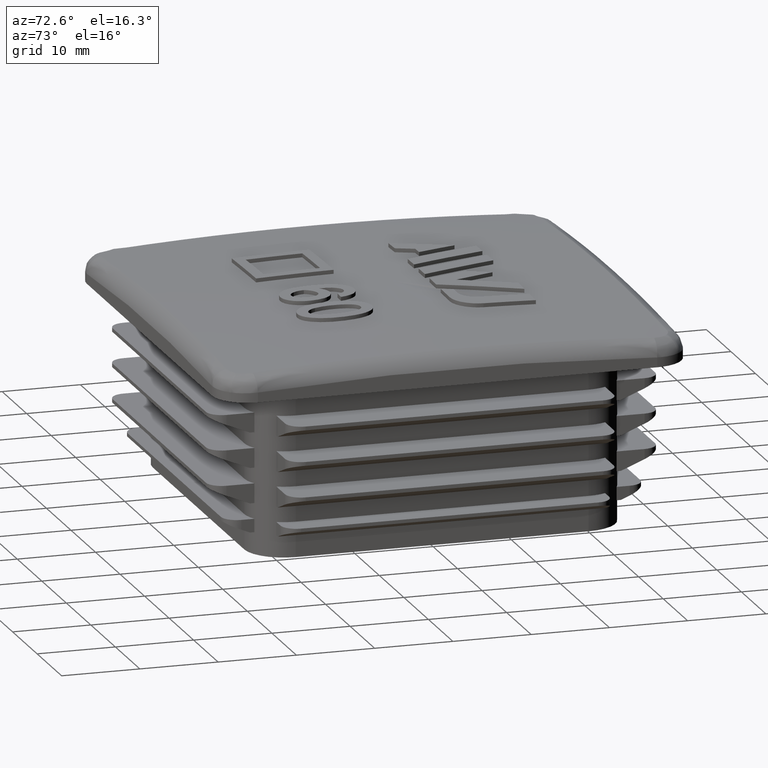
[diagram: clean part render]
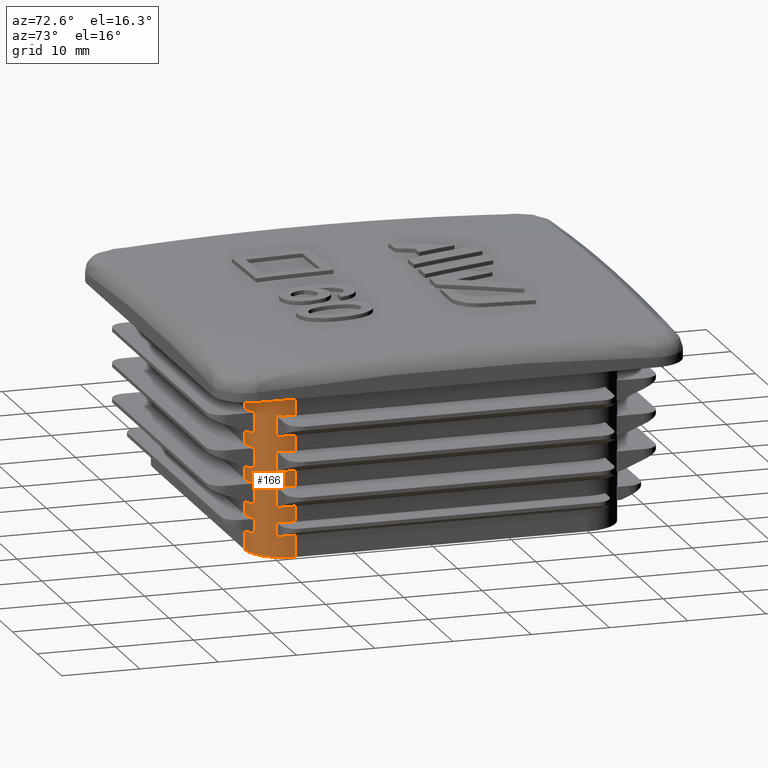
[diagram: same view with one face highlighted and labeled with its STEP entity id]
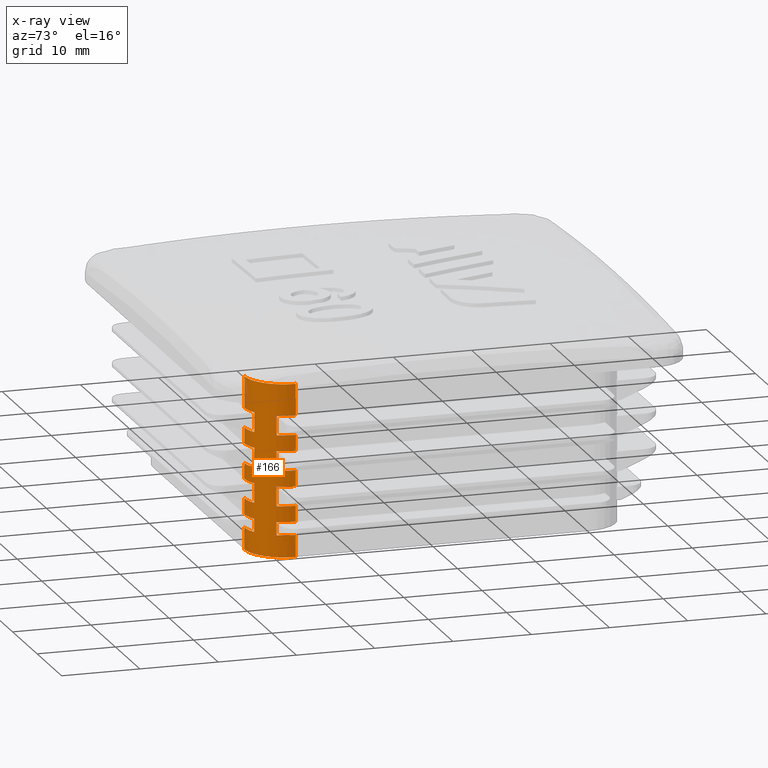
[diagram: x-ray of the same camera — body ghosted, the highlighted face saturated]
A machine part, auxiliary view. The second image highlights one B-rep face of the part: STEP entity #166.
The next image is the same camera in x-ray: the body ghosted, the highlighted face saturated — about 1% of this face is hidden behind the body in this view.
In plain terms, the highlighted cylindrical surface (partial cylindrical patch) has radius 5 mm, axis along (0, 0, -1).
Its self-contained STEP definition (entity closure, byte-faithful):
#166 = ADVANCED_FACE( '', ( #557 ), #558, .T. );
#557 = FACE_OUTER_BOUND( '', #3223, .T. );
#558 = CYLINDRICAL_SURFACE( '', #3224, 5.00000000000000 );
#3223 = EDGE_LOOP( '', ( #4375, #4376, #4377, #4378, #4379, #4380, #4381, #4382, #4383, #4384, #4385, #4386, #4387, #4388, #4389, #4390, #4391, #4392, #4393, #4394, #4395, #4396, #4397, #4398, #4399, #4400, #4401, #4402, #4403, #4404, #4405, #4406, #4407, #4408, #4409, #4410 ) );
#3224 = AXIS2_PLACEMENT_3D( '', #4411, #4412, #4413 );
#4375 = ORIENTED_EDGE( '', *, *, #6253, .F. );
#4376 = ORIENTED_EDGE( '', *, *, #6254, .T. );
#4377 = ORIENTED_EDGE( '', *, *, #6255, .T. );
#4378 = ORIENTED_EDGE( '', *, *, #6256, .T. );
#4379 = ORIENTED_EDGE( '', *, *, #6257, .F. );
#4380 = ORIENTED_EDGE( '', *, *, #6258, .T. );
#4381 = ORIENTED_EDGE( '', *, *, #6259, .T. );
#4382 = ORIENTED_EDGE( '', *, *, #6260, .T. );
#4383 = ORIENTED_EDGE( '', *, *, #6261, .F. );
#4384 = ORIENTED_EDGE( '', *, *, #6262, .T. );
#4385 = ORIENTED_EDGE( '', *, *, #6263, .T. );
#4386 = ORIENTED_EDGE( '', *, *, #6264, .T. );
#4387 = ORIENTED_EDGE( '', *, *, #6265, .F. );
#4388 = ORIENTED_EDGE( '', *, *, #6266, .T. );
#4389 = ORIENTED_EDGE( '', *, *, #6267, .T. );
#4390 = ORIENTED_EDGE( '', *, *, #6044, .F. );
#4391 = ORIENTED_EDGE( '', *, *, #6268, .F. );
#4392 = ORIENTED_EDGE( '', *, *, #6269, .T. );
#4393 = ORIENTED_EDGE( '', *, *, #6270, .T. );
#4394 = ORIENTED_EDGE( '', *, *, #6271, .T. );
#4395 = ORIENTED_EDGE( '', *, *, #6272, .F. );
#4396 = ORIENTED_EDGE( '', *, *, #6273, .T. );
#4397 = ORIENTED_EDGE( '', *, *, #6274, .T. );
#4398 = ORIENTED_EDGE( '', *, *, #6275, .T. );
#4399 = ORIENTED_EDGE( '', *, *, #6276, .F. );
#4400 = ORIENTED_EDGE( '', *, *, #6277, .T. );
#4401 = ORIENTED_EDGE( '', *, *, #6278, .T. );
#4402 = ORIENTED_EDGE( '', *, *, #6279, .T. );
#4403 = ORIENTED_EDGE( '', *, *, #6280, .F. );
#4404 = ORIENTED_EDGE( '', *, *, #6281, .T. );
#4405 = ORIENTED_EDGE( '', *, *, #6282, .T. );
#4406 = ORIENTED_EDGE( '', *, *, #6283, .T. );
#4407 = ORIENTED_EDGE( '', *, *, #6284, .F. );
#4408 = ORIENTED_EDGE( '', *, *, #6125, .T. );
#4409 = ORIENTED_EDGE( '', *, *, #6285, .T. );
#4410 = ORIENTED_EDGE( '', *, *, #6286, .T. );
#4411 = CARTESIAN_POINT( '', ( 18.7000000000000, -18.7000000000000, 3.46944695195361E-015 ) );
#4412 = DIRECTION( '', ( 0.000000000000000, 0.000000000000000, -1.00000000000000 ) );
#4413 = DIRECTION( '', ( 0.000000000000000, -1.00000000000000, 0.000000000000000 ) );
#6044 = EDGE_CURVE( '', #6874, #6876, #6877, .T. );
#6125 = EDGE_CURVE( '', #7020, #7018, #7021, .T. );
#6253 = EDGE_CURVE( '', #7220, #7221, #7222, .F. );
#6254 = EDGE_CURVE( '', #7220, #7223, #7224, .F. );
#6255 = EDGE_CURVE( '', #7223, #7225, #7226, .T. );
#6256 = EDGE_CURVE( '', #7225, #7227, #7228, .F. );
#6257 = EDGE_CURVE( '', #7229, #7227, #7230, .F. );
#6258 = EDGE_CURVE( '', #7229, #7231, #7232, .F. );
#6259 = EDGE_CURVE( '', #7231, #7233, #7234, .T. );
#6260 = EDGE_CURVE( '', #7233, #7235, #7236, .F. );
#6261 = EDGE_CURVE( '', #7237, #7235, #7238, .F. );
#6262 = EDGE_CURVE( '', #7237, #7239, #7240, .F. );
#6263 = EDGE_CURVE( '', #7239, #7241, #7242, .T. );
#6264 = EDGE_CURVE( '', #7241, #7243, #7244, .F. );
#6265 = EDGE_CURVE( '', #7245, #7243, #7246, .F. );
#6266 = EDGE_CURVE( '', #7245, #7247, #7248, .F. );
#6267 = EDGE_CURVE( '', #7247, #6876, #7249, .T. );
#6268 = EDGE_CURVE( '', #7250, #6874, #7251, .T. );
#6269 = EDGE_CURVE( '', #7250, #7252, #7253, .F. );
#6270 = EDGE_CURVE( '', #7252, #7254, #7255, .F. );
#6271 = EDGE_CURVE( '', #7254, #7256, #7257, .F. );
#6272 = EDGE_CURVE( '', #7258, #7256, #7259, .T. );
#6273 = EDGE_CURVE( '', #7258, #7260, #7261, .F. );
#6274 = EDGE_CURVE( '', #7260, #7262, #7263, .F. );
#6275 = EDGE_CURVE( '', #7262, #7264, #7265, .F. );
#6276 = EDGE_CURVE( '', #7266, #7264, #7267, .T. );
#6277 = EDGE_CURVE( '', #7266, #7268, #7269, .F. );
#6278 = EDGE_CURVE( '', #7268, #7270, #7271, .F. );
#6279 = EDGE_CURVE( '', #7270, #7272, #7273, .F. );
#6280 = EDGE_CURVE( '', #7274, #7272, #7275, .T. );
#6281 = EDGE_CURVE( '', #7274, #7276, #7277, .F. );
#6282 = EDGE_CURVE( '', #7276, #7278, #7279, .F. );
#6283 = EDGE_CURVE( '', #7278, #7280, #7281, .F. );
#6284 = EDGE_CURVE( '', #7020, #7280, #7282, .T. );
#6285 = EDGE_CURVE( '', #7018, #7283, #7284, .T. );
#6286 = EDGE_CURVE( '', #7283, #7221, #7285, .F. );
#6874 = VERTEX_POINT( '', #9125 );
#6876 = VERTEX_POINT( '', #9128 );
#6877 = CIRCLE( '', #9129, 5.00000000000000 );
#7018 = VERTEX_POINT( '', #9922 );
#7020 = VERTEX_POINT( '', #9925 );
#7021 = CIRCLE( '', #9926, 5.00000000000000 );
#7220 = VERTEX_POINT( '', #10706 );
#7221 = VERTEX_POINT( '', #10707 );
#7222 = LINE( '', #10708, #10709 );
#7223 = VERTEX_POINT( '', #10710 );
#7224 = CIRCLE( '', #10711, 5.00000000000000 );
#7225 = VERTEX_POINT( '', #10712 );
#7226 = LINE( '', #10713, #10714 );
#7227 = VERTEX_POINT( '', #10715 );
#7228 = CIRCLE( '', #10716, 5.00000000000000 );
#7229 = VERTEX_POINT( '', #10717 );
#7230 = LINE( '', #10718, #10719 );
#7231 = VERTEX_POINT( '', #10720 );
#7232 = CIRCLE( '', #10721, 5.00000000000000 );
#7233 = VERTEX_POINT( '', #10722 );
#7234 = LINE( '', #10723, #10724 );
#7235 = VERTEX_POINT( '', #10725 );
#7236 = CIRCLE( '', #10726, 5.00000000000000 );
#7237 = VERTEX_POINT( '', #10727 );
#7238 = LINE( '', #10728, #10729 );
#7239 = VERTEX_POINT( '', #10730 );
#7240 = CIRCLE( '', #10731, 5.00000000000000 );
#7241 = VERTEX_POINT( '', #10732 );
#7242 = LINE( '', #10733, #10734 );
#7243 = VERTEX_POINT( '', #10735 );
#7244 = CIRCLE( '', #10736, 5.00000000000000 );
#7245 = VERTEX_POINT( '', #10737 );
#7246 = LINE( '', #10738, #10739 );
#7247 = VERTEX_POINT( '', #10740 );
#7248 = CIRCLE( '', #10741, 5.00000000000000 );
#7249 = LINE( '', #10742, #10743 );
#7250 = VERTEX_POINT( '', #10744 );
#7251 = LINE( '', #10745, #10746 );
#7252 = VERTEX_POINT( '', #10747 );
#7253 = CIRCLE( '', #10748, 5.00000000000000 );
#7254 = VERTEX_POINT( '', #10749 );
#7255 = LINE( '', #10750, #10751 );
#7256 = VERTEX_POINT( '', #10752 );
#7257 = CIRCLE( '', #10753, 5.00000000000000 );
#7258 = VERTEX_POINT( '', #10754 );
#7259 = LINE( '', #10755, #10756 );
#7260 = VERTEX_POINT( '', #10757 );
#7261 = CIRCLE( '', #10758, 5.00000000000000 );
#7262 = VERTEX_POINT( '', #10759 );
#7263 = LINE( '', #10760, #10761 );
#7264 = VERTEX_POINT( '', #10762 );
#7265 = CIRCLE( '', #10763, 5.00000000000000 );
#7266 = VERTEX_POINT( '', #10764 );
#7267 = LINE( '', #10765, #10766 );
#7268 = VERTEX_POINT( '', #10767 );
#7269 = CIRCLE( '', #10768, 5.00000000000000 );
#7270 = VERTEX_POINT( '', #10769 );
#7271 = LINE( '', #10770, #10771 );
#7272 = VERTEX_POINT( '', #10772 );
#7273 = CIRCLE( '', #10773, 5.00000000000000 );
#7274 = VERTEX_POINT( '', #10774 );
#7275 = LINE( '', #10775, #10776 );
#7276 = VERTEX_POINT( '', #10777 );
#7277 = CIRCLE( '', #10778, 5.00000000000000 );
#7278 = VERTEX_POINT( '', #10779 );
#7279 = LINE( '', #10780, #10781 );
#7280 = VERTEX_POINT( '', #10782 );
#7281 = CIRCLE( '', #10783, 5.00000000000000 );
#7282 = LINE( '', #10784, #10785 );
#7283 = VERTEX_POINT( '', #10786 );
#7284 = LINE( '', #10787, #10788 );
#7285 = CIRCLE( '', #10789, 5.00000000000000 );
#9125 = CARTESIAN_POINT( '', ( 18.7000000000000, -23.7000000000000, 22.0000000000000 ) );
#9128 = CARTESIAN_POINT( '', ( 23.7000000000000, -18.7000000000000, 22.0000000000000 ) );
#9129 = AXIS2_PLACEMENT_3D( '', #11782, #11783, #11784 );
#9922 = CARTESIAN_POINT( '', ( 23.7000000000000, -18.7000000000000, 3.46944695195361E-015 ) );
#9925 = CARTESIAN_POINT( '', ( 18.7000000000000, -23.7000000000000, 3.46944695195361E-015 ) );
#9926 = AXIS2_PLACEMENT_3D( '', #11896, #11897, #11898 );
#10706 = CARTESIAN_POINT( '', ( 23.1395945760846, -21.0000000000000, 4.50000000000000 ) );
#10707 = CARTESIAN_POINT( '', ( 23.1395945760846, -21.0000000000000, 2.79999999999999 ) );
#10708 = CARTESIAN_POINT( '', ( 23.1395945760846, -21.0000000000000, 3.46944695195361E-015 ) );
#10709 = VECTOR( '', #12041, 1000.00000000000 );
#10710 = CARTESIAN_POINT( '', ( 23.7000000000000, -18.7000000000000, 4.50000000000000 ) );
#10711 = AXIS2_PLACEMENT_3D( '', #12042, #12043, #12044 );
#10712 = CARTESIAN_POINT( '', ( 23.7000000000001, -18.7000000000000, 6.50000000000002 ) );
#10713 = CARTESIAN_POINT( '', ( 23.7000000000000, -18.7000000000000, 3.46944695195361E-015 ) );
#10714 = VECTOR( '', #12045, 1000.00000000000 );
#10715 = CARTESIAN_POINT( '', ( 23.1395945760846, -21.0000000000000, 6.50000000000000 ) );
#10716 = AXIS2_PLACEMENT_3D( '', #12046, #12047, #12048 );
#10717 = CARTESIAN_POINT( '', ( 23.1395945760846, -21.0000000000000, 9.00000000000000 ) );
#10718 = CARTESIAN_POINT( '', ( 23.1395945760846, -21.0000000000000, 3.46944695195361E-015 ) );
#10719 = VECTOR( '', #12049, 1000.00000000000 );
#10720 = CARTESIAN_POINT( '', ( 23.7000000000000, -18.7000000000000, 9.00000000000000 ) );
#10721 = AXIS2_PLACEMENT_3D( '', #12050, #12051, #12052 );
#10722 = CARTESIAN_POINT( '', ( 23.7000000000000, -18.7000000000000, 11.0000000000000 ) );
#10723 = CARTESIAN_POINT( '', ( 23.7000000000000, -18.7000000000000, 3.46944695195361E-015 ) );
#10724 = VECTOR( '', #12053, 1000.00000000000 );
#10725 = CARTESIAN_POINT( '', ( 23.1395945760846, -21.0000000000000, 11.0000000000000 ) );
#10726 = AXIS2_PLACEMENT_3D( '', #12054, #12055, #12056 );
#10727 = CARTESIAN_POINT( '', ( 23.1395945760846, -21.0000000000000, 13.5000000000000 ) );
#10728 = CARTESIAN_POINT( '', ( 23.1395945760846, -21.0000000000000, 3.46944695195361E-015 ) );
#10729 = VECTOR( '', #12057, 1000.00000000000 );
#10730 = CARTESIAN_POINT( '', ( 23.7000000000000, -18.7000000000000, 13.5000000000000 ) );
#10731 = AXIS2_PLACEMENT_3D( '', #12058, #12059, #12060 );
#10732 = CARTESIAN_POINT( '', ( 23.7000000000001, -18.7000000000000, 15.5000000000000 ) );
#10733 = CARTESIAN_POINT( '', ( 23.7000000000000, -18.7000000000000, 3.46944695195361E-015 ) );
#10734 = VECTOR( '', #12061, 1000.00000000000 );
#10735 = CARTESIAN_POINT( '', ( 23.1395945760846, -21.0000000000000, 15.5000000000000 ) );
#10736 = AXIS2_PLACEMENT_3D( '', #12062, #12063, #12064 );
#10737 = CARTESIAN_POINT( '', ( 23.1395945760846, -21.0000000000000, 18.0000000000000 ) );
#10738 = CARTESIAN_POINT( '', ( 23.1395945760846, -21.0000000000000, 3.46944695195361E-015 ) );
#10739 = VECTOR( '', #12065, 1000.00000000000 );
#10740 = CARTESIAN_POINT( '', ( 23.7000000000000, -18.7000000000000, 18.0000000000000 ) );
#10741 = AXIS2_PLACEMENT_3D( '', #12066, #12067, #12068 );
#10742 = CARTESIAN_POINT( '', ( 23.7000000000000, -18.7000000000000, 3.46944695195361E-015 ) );
#10743 = VECTOR( '', #12069, 1000.00000000000 );
#10744 = CARTESIAN_POINT( '', ( 18.7000000000000, -23.7000000000000, 18.0000000000000 ) );
#10745 = CARTESIAN_POINT( '', ( 18.7000000000000, -23.7000000000000, 3.46944695195361E-015 ) );
#10746 = VECTOR( '', #12070, 1000.00000000000 );
#10747 = CARTESIAN_POINT( '', ( 21.0000000000000, -23.1395945760846, 18.0000000000000 ) );
#10748 = AXIS2_PLACEMENT_3D( '', #12071, #12072, #12073 );
#10749 = CARTESIAN_POINT( '', ( 21.0000000000000, -23.1395945760846, 15.5000000000000 ) );
#10750 = CARTESIAN_POINT( '', ( 21.0000000000000, -23.1395945760846, 3.46944695195361E-015 ) );
#10751 = VECTOR( '', #12074, 1000.00000000000 );
#10752 = CARTESIAN_POINT( '', ( 18.7000000000000, -23.7000000000000, 15.5000000000000 ) );
#10753 = AXIS2_PLACEMENT_3D( '', #12075, #12076, #12077 );
#10754 = CARTESIAN_POINT( '', ( 18.7000000000000, -23.7000000000000, 13.5000000000000 ) );
#10755 = CARTESIAN_POINT( '', ( 18.7000000000000, -23.7000000000000, 3.46944695195361E-015 ) );
#10756 = VECTOR( '', #12078, 1000.00000000000 );
#10757 = CARTESIAN_POINT( '', ( 21.0000000000000, -23.1395945760846, 13.5000000000000 ) );
#10758 = AXIS2_PLACEMENT_3D( '', #12079, #12080, #12081 );
#10759 = CARTESIAN_POINT( '', ( 21.0000000000000, -23.1395945760846, 11.0000000000000 ) );
#10760 = CARTESIAN_POINT( '', ( 21.0000000000000, -23.1395945760846, 3.46944695195361E-015 ) );
#10761 = VECTOR( '', #12082, 1000.00000000000 );
#10762 = CARTESIAN_POINT( '', ( 18.7000000000000, -23.7000000000000, 11.0000000000000 ) );
#10763 = AXIS2_PLACEMENT_3D( '', #12083, #12084, #12085 );
#10764 = CARTESIAN_POINT( '', ( 18.7000000000000, -23.7000000000000, 9.00000000000000 ) );
#10765 = CARTESIAN_POINT( '', ( 18.7000000000000, -23.7000000000000, 3.46944695195361E-015 ) );
#10766 = VECTOR( '', #12086, 1000.00000000000 );
#10767 = CARTESIAN_POINT( '', ( 21.0000000000000, -23.1395945760846, 9.00000000000000 ) );
#10768 = AXIS2_PLACEMENT_3D( '', #12087, #12088, #12089 );
#10769 = CARTESIAN_POINT( '', ( 21.0000000000000, -23.1395945760846, 6.50000000000002 ) );
#10770 = CARTESIAN_POINT( '', ( 21.0000000000000, -23.1395945760846, 3.46944695195361E-015 ) );
#10771 = VECTOR( '', #12090, 1000.00000000000 );
#10772 = CARTESIAN_POINT( '', ( 18.7000000000000, -23.7000000000000, 6.49999999999999 ) );
#10773 = AXIS2_PLACEMENT_3D( '', #12091, #12092, #12093 );
#10774 = CARTESIAN_POINT( '', ( 18.7000000000000, -23.7000000000000, 4.50000000000000 ) );
#10775 = CARTESIAN_POINT( '', ( 18.7000000000000, -23.7000000000000, 3.46944695195361E-015 ) );
#10776 = VECTOR( '', #12094, 1000.00000000000 );
#10777 = CARTESIAN_POINT( '', ( 21.0000000000000, -23.1395945760846, 4.50000000000000 ) );
#10778 = AXIS2_PLACEMENT_3D( '', #12095, #12096, #12097 );
#10779 = CARTESIAN_POINT( '', ( 21.0000000000000, -23.1395945760846, 2.79999999999999 ) );
#10780 = CARTESIAN_POINT( '', ( 21.0000000000000, -23.1395945760846, 3.46944695195361E-015 ) );
#10781 = VECTOR( '', #12098, 1000.00000000000 );
#10782 = CARTESIAN_POINT( '', ( 18.7000000000000, -23.7000000000000, 2.79999999999999 ) );
#10783 = AXIS2_PLACEMENT_3D( '', #12099, #12100, #12101 );
#10784 = CARTESIAN_POINT( '', ( 18.7000000000000, -23.7000000000000, 3.46944695195361E-015 ) );
#10785 = VECTOR( '', #12102, 1000.00000000000 );
#10786 = CARTESIAN_POINT( '', ( 23.7000000000000, -18.7000000000000, 2.79999999999999 ) );
#10787 = CARTESIAN_POINT( '', ( 23.7000000000000, -18.7000000000000, 3.46944695195361E-015 ) );
#10788 = VECTOR( '', #12103, 1000.00000000000 );
#10789 = AXIS2_PLACEMENT_3D( '', #12104, #12105, #12106 );
#11782 = CARTESIAN_POINT( '', ( 18.7000000000000, -18.7000000000000, 22.0000000000000 ) );
#11783 = DIRECTION( '', ( 0.000000000000000, 0.000000000000000, 1.00000000000000 ) );
#11784 = DIRECTION( '', ( 0.000000000000000, -1.00000000000000, 0.000000000000000 ) );
#11896 = CARTESIAN_POINT( '', ( 18.7000000000000, -18.7000000000000, 3.46944695195361E-015 ) );
#11897 = DIRECTION( '', ( 0.000000000000000, 0.000000000000000, 1.00000000000000 ) );
#11898 = DIRECTION( '', ( 0.000000000000000, -1.00000000000000, 0.000000000000000 ) );
#12041 = DIRECTION( '', ( 0.000000000000000, 0.000000000000000, 1.00000000000000 ) );
#12042 = CARTESIAN_POINT( '', ( 18.7000000000000, -18.7000000000000, 4.50000000000000 ) );
#12043 = DIRECTION( '', ( 0.000000000000000, -6.12303176911189E-017, -1.00000000000000 ) );
#12044 = DIRECTION( '', ( 0.000000000000000, 1.00000000000000, -6.12303176911189E-017 ) );
#12045 = DIRECTION( '', ( 0.000000000000000, 0.000000000000000, 1.00000000000000 ) );
#12046 = CARTESIAN_POINT( '', ( 18.7000000000000, -18.7000000000000, 6.50000000000000 ) );
#12047 = DIRECTION( '', ( 0.000000000000000, 6.12303176911189E-017, 1.00000000000000 ) );
#12048 = DIRECTION( '', ( 0.000000000000000, -1.00000000000000, 6.12303176911189E-017 ) );
#12049 = DIRECTION( '', ( 0.000000000000000, 0.000000000000000, 1.00000000000000 ) );
#12050 = CARTESIAN_POINT( '', ( 18.7000000000000, -18.7000000000000, 9.00000000000000 ) );
#12051 = DIRECTION( '', ( 0.000000000000000, -6.12303176911189E-017, -1.00000000000000 ) );
#12052 = DIRECTION( '', ( 0.000000000000000, 1.00000000000000, -6.12303176911189E-017 ) );
#12053 = DIRECTION( '', ( 0.000000000000000, 0.000000000000000, 1.00000000000000 ) );
#12054 = CARTESIAN_POINT( '', ( 18.7000000000000, -18.7000000000000, 11.0000000000000 ) );
#12055 = DIRECTION( '', ( 0.000000000000000, 6.12303176911189E-017, 1.00000000000000 ) );
#12056 = DIRECTION( '', ( 0.000000000000000, -1.00000000000000, 6.12303176911189E-017 ) );
#12057 = DIRECTION( '', ( 0.000000000000000, 0.000000000000000, 1.00000000000000 ) );
#12058 = CARTESIAN_POINT( '', ( 18.7000000000000, -18.7000000000000, 13.5000000000000 ) );
#12059 = DIRECTION( '', ( 0.000000000000000, -6.12303176911189E-017, -1.00000000000000 ) );
#12060 = DIRECTION( '', ( 0.000000000000000, 1.00000000000000, -6.12303176911189E-017 ) );
#12061 = DIRECTION( '', ( 0.000000000000000, 0.000000000000000, 1.00000000000000 ) );
#12062 = CARTESIAN_POINT( '', ( 18.7000000000000, -18.7000000000000, 15.5000000000000 ) );
#12063 = DIRECTION( '', ( 0.000000000000000, 6.12303176911189E-017, 1.00000000000000 ) );
#12064 = DIRECTION( '', ( 0.000000000000000, -1.00000000000000, 6.12303176911189E-017 ) );
#12065 = DIRECTION( '', ( 0.000000000000000, 0.000000000000000, 1.00000000000000 ) );
#12066 = CARTESIAN_POINT( '', ( 18.7000000000000, -18.7000000000000, 18.0000000000000 ) );
#12067 = DIRECTION( '', ( 0.000000000000000, -6.12303176911189E-017, -1.00000000000000 ) );
#12068 = DIRECTION( '', ( 0.000000000000000, 1.00000000000000, -6.12303176911189E-017 ) );
#12069 = DIRECTION( '', ( 0.000000000000000, 0.000000000000000, 1.00000000000000 ) );
#12070 = DIRECTION( '', ( 0.000000000000000, 0.000000000000000, 1.00000000000000 ) );
#12071 = CARTESIAN_POINT( '', ( 18.7000000000000, -18.7000000000000, 18.0000000000000 ) );
#12072 = DIRECTION( '', ( -2.46519032881566E-032, -6.12303176911189E-017, -1.00000000000000 ) );
#12073 = DIRECTION( '', ( 0.000000000000000, 1.00000000000000, -6.12303176911189E-017 ) );
#12074 = DIRECTION( '', ( 0.000000000000000, 0.000000000000000, 1.00000000000000 ) );
#12075 = CARTESIAN_POINT( '', ( 18.7000000000000, -18.7000000000000, 15.5000000000000 ) );
#12076 = DIRECTION( '', ( 2.46519032881566E-032, 6.12303176911189E-017, 1.00000000000000 ) );
#12077 = DIRECTION( '', ( 0.000000000000000, -1.00000000000000, 6.12303176911189E-017 ) );
#12078 = DIRECTION( '', ( 0.000000000000000, 0.000000000000000, 1.00000000000000 ) );
#12079 = CARTESIAN_POINT( '', ( 18.7000000000000, -18.7000000000000, 13.5000000000000 ) );
#12080 = DIRECTION( '', ( -2.46519032881566E-032, -6.12303176911189E-017, -1.00000000000000 ) );
#12081 = DIRECTION( '', ( 0.000000000000000, 1.00000000000000, -6.12303176911189E-017 ) );
#12082 = DIRECTION( '', ( 0.000000000000000, 0.000000000000000, 1.00000000000000 ) );
#12083 = CARTESIAN_POINT( '', ( 18.7000000000000, -18.7000000000000, 11.0000000000000 ) );
#12084 = DIRECTION( '', ( 2.46519032881566E-032, 6.12303176911189E-017, 1.00000000000000 ) );
#12085 = DIRECTION( '', ( 0.000000000000000, -1.00000000000000, 6.12303176911189E-017 ) );
#12086 = DIRECTION( '', ( 0.000000000000000, 0.000000000000000, 1.00000000000000 ) );
#12087 = CARTESIAN_POINT( '', ( 18.7000000000000, -18.7000000000000, 9.00000000000000 ) );
#12088 = DIRECTION( '', ( -2.46519032881566E-032, -6.12303176911189E-017, -1.00000000000000 ) );
#12089 = DIRECTION( '', ( 0.000000000000000, 1.00000000000000, -6.12303176911189E-017 ) );
#12090 = DIRECTION( '', ( 0.000000000000000, 0.000000000000000, 1.00000000000000 ) );
#12091 = CARTESIAN_POINT( '', ( 18.7000000000000, -18.7000000000000, 6.50000000000000 ) );
#12092 = DIRECTION( '', ( 2.46519032881566E-032, 6.12303176911189E-017, 1.00000000000000 ) );
#12093 = DIRECTION( '', ( 0.000000000000000, -1.00000000000000, 6.12303176911189E-017 ) );
#12094 = DIRECTION( '', ( 0.000000000000000, 0.000000000000000, 1.00000000000000 ) );
#12095 = CARTESIAN_POINT( '', ( 18.7000000000000, -18.7000000000000, 4.50000000000000 ) );
#12096 = DIRECTION( '', ( -2.46519032881566E-032, -6.12303176911189E-017, -1.00000000000000 ) );
#12097 = DIRECTION( '', ( 0.000000000000000, 1.00000000000000, -6.12303176911189E-017 ) );
#12098 = DIRECTION( '', ( 0.000000000000000, 0.000000000000000, 1.00000000000000 ) );
#12099 = CARTESIAN_POINT( '', ( 18.7000000000000, -18.7000000000000, 2.79999999999999 ) );
#12100 = DIRECTION( '', ( 2.46519032881566E-032, 6.12303176911189E-017, 1.00000000000000 ) );
#12101 = DIRECTION( '', ( 0.000000000000000, -1.00000000000000, 6.12303176911189E-017 ) );
#12102 = DIRECTION( '', ( 0.000000000000000, 0.000000000000000, 1.00000000000000 ) );
#12103 = DIRECTION( '', ( 0.000000000000000, 0.000000000000000, 1.00000000000000 ) );
#12104 = CARTESIAN_POINT( '', ( 18.7000000000000, -18.7000000000000, 2.79999999999999 ) );
#12105 = DIRECTION( '', ( 0.000000000000000, 6.12303176911189E-017, 1.00000000000000 ) );
#12106 = DIRECTION( '', ( 0.000000000000000, -1.00000000000000, 6.12303176911189E-017 ) );